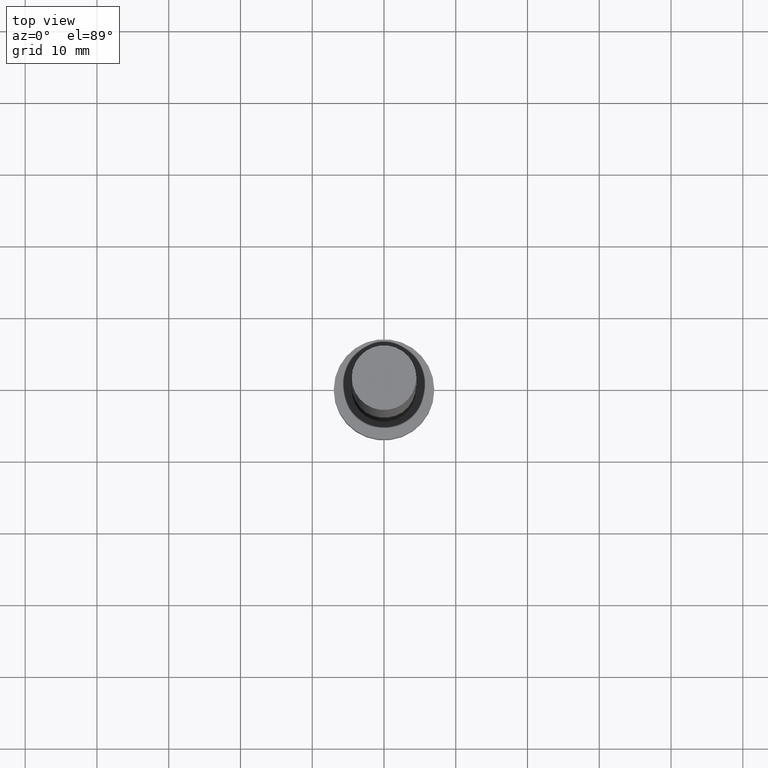
[diagram: clean part render]
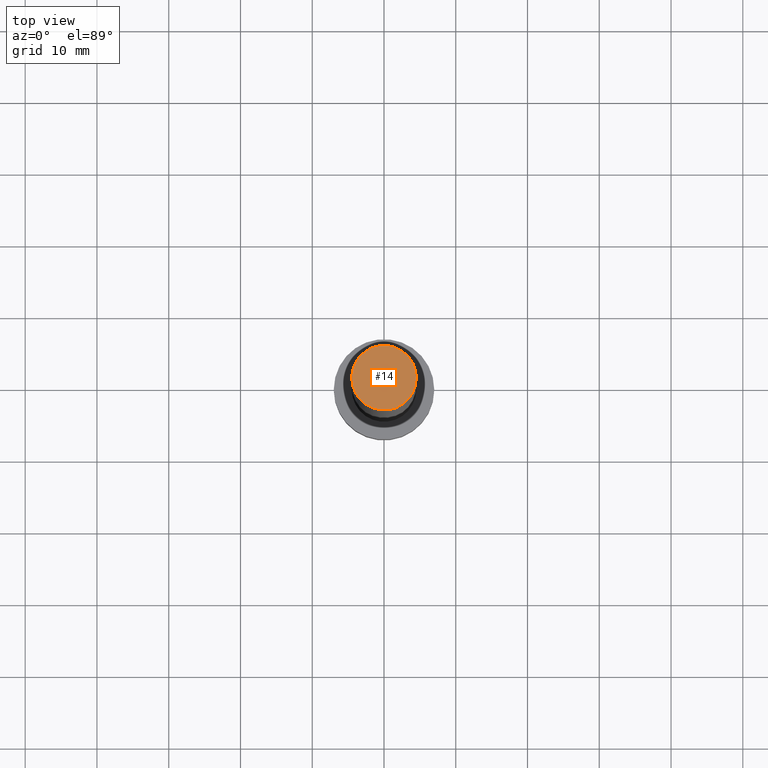
[diagram: same view with one face highlighted and labeled with its STEP entity id]
A machine part, top view. The second image highlights one B-rep face of the part: STEP entity #14.
In plain terms, the highlighted planar face has unit normal (0, 0, 1).
Its self-contained STEP definition (entity closure, byte-faithful):
#11 = ORIENTED_EDGE ( 'NONE', *, *, #45, .T. ) ;
#14 = ADVANCED_FACE ( 'NONE', ( #224 ), #50, .T. ) ;
#34 = VERTEX_POINT ( 'NONE', #65 ) ;
#37 = AXIS2_PLACEMENT_3D ( 'NONE', #218, #194, #195 ) ;
#40 = DIRECTION ( 'NONE',  ( 1.000000000000000000, 0.000000000000000000, 0.000000000000000000 ) ) ;
#42 = CIRCLE ( 'NONE', #37, 4.500000000000000888 ) ;
#45 = EDGE_CURVE ( 'NONE', #211, #34, #42, .T. ) ;
#50 = PLANE ( 'NONE',  #208 ) ;
#60 = CIRCLE ( 'NONE', #111, 4.500000000000000888 ) ;
#65 = CARTESIAN_POINT ( 'NONE',  ( -4.500000000000000888, 0.000000000000000000, 100.0000000000000000 ) ) ;
#87 = CARTESIAN_POINT ( 'NONE',  ( 4.500000000000000888, 5.510910596163089556E-16, 100.0000000000000000 ) ) ;
#108 = CARTESIAN_POINT ( 'NONE',  ( 0.000000000000000000, 0.000000000000000000, 100.0000000000000000 ) ) ;
#111 = AXIS2_PLACEMENT_3D ( 'NONE', #108, #180, #40 ) ;
#126 = ORIENTED_EDGE ( 'NONE', *, *, #212, .T. ) ;
#162 = DIRECTION ( 'NONE',  ( 1.000000000000000000, 0.000000000000000000, -0.000000000000000000 ) ) ;
#164 = DIRECTION ( 'NONE',  ( 0.000000000000000000, 0.000000000000000000, 1.000000000000000000 ) ) ;
#178 = EDGE_LOOP ( 'NONE', ( #126, #11 ) ) ;
#180 = DIRECTION ( 'NONE',  ( 0.000000000000000000, 0.000000000000000000, 1.000000000000000000 ) ) ;
#194 = DIRECTION ( 'NONE',  ( 0.000000000000000000, 0.000000000000000000, 1.000000000000000000 ) ) ;
#195 = DIRECTION ( 'NONE',  ( 1.000000000000000000, 0.000000000000000000, 0.000000000000000000 ) ) ;
#208 = AXIS2_PLACEMENT_3D ( 'NONE', #220, #164, #162 ) ;
#211 = VERTEX_POINT ( 'NONE', #87 ) ;
#212 = EDGE_CURVE ( 'NONE', #34, #211, #60, .T. ) ;
#218 = CARTESIAN_POINT ( 'NONE',  ( 0.000000000000000000, 0.000000000000000000, 100.0000000000000000 ) ) ;
#220 = CARTESIAN_POINT ( 'NONE',  ( 0.000000000000000000, 0.000000000000000000, 100.0000000000000000 ) ) ;
#224 = FACE_OUTER_BOUND ( 'NONE', #178, .T. ) ;